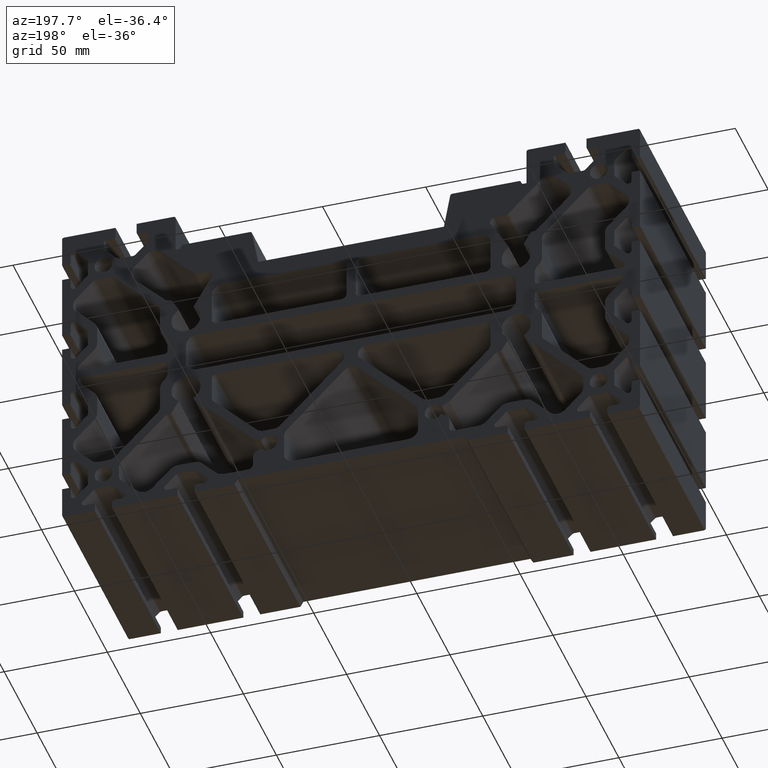
[diagram: clean part render]
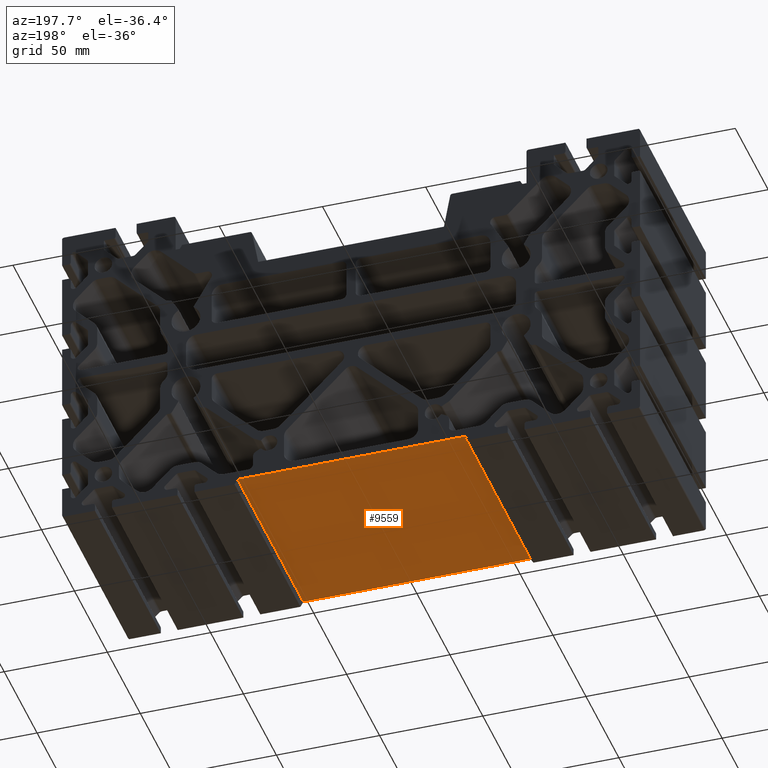
[diagram: same view with one face highlighted and labeled with its STEP entity id]
A machine part, auxiliary view. The second image highlights one B-rep face of the part: STEP entity #9559.
In plain terms, the highlighted planar face has unit normal (0, 0, -1).
Its self-contained STEP definition (entity closure, byte-faithful):
#300=PLANE('',#10502);
#774=FACE_OUTER_BOUND('',#1266,.T.);
#1266=EDGE_LOOP('',(#8388,#8389,#8390,#8391));
#1768=LINE('',#14734,#2738);
#1985=LINE('',#15404,#2955);
#2254=LINE('',#16147,#3224);
#2255=LINE('',#16149,#3225);
#2738=VECTOR('',#11906,10.);
#2955=VECTOR('',#12583,10.);
#3224=VECTOR('',#13310,10.);
#3225=VECTOR('',#13313,10.);
#4146=VERTEX_POINT('',#14731);
#4147=VERTEX_POINT('',#14733);
#4370=VERTEX_POINT('',#15403);
#4615=VERTEX_POINT('',#16145);
#5322=EDGE_CURVE('',#4146,#4147,#1768,.T.);
#5657=EDGE_CURVE('',#4370,#4146,#1985,.T.);
#6030=EDGE_CURVE('',#4370,#4615,#2254,.T.);
#6031=EDGE_CURVE('',#4615,#4147,#2255,.T.);
#8388=ORIENTED_EDGE('',*,*,#6030,.T.);
#8389=ORIENTED_EDGE('',*,*,#6031,.T.);
#8390=ORIENTED_EDGE('',*,*,#5322,.F.);
#8391=ORIENTED_EDGE('',*,*,#5657,.F.);
#9559=ADVANCED_FACE('',(#774),#300,.T.);
#10502=AXIS2_PLACEMENT_3D('',#16148,#13311,#13312);
#11906=DIRECTION('',(0.,1.,0.));
#12583=DIRECTION('',(1.,0.,1.61486985400023E-16));
#13310=DIRECTION('',(0.,1.,0.));
#13311=DIRECTION('center_axis',(1.61486985400023E-16,0.,-1.));
#13312=DIRECTION('ref_axis',(-1.,0.,-1.61486985400023E-16));
#13313=DIRECTION('',(1.,0.,-1.14835189620999E-15));
#14731=CARTESIAN_POINT('',(55.,-50.,-77.5000000106118));
#14733=CARTESIAN_POINT('',(55.,50.,-77.5000000106118));
#14734=CARTESIAN_POINT('',(55.,0.,-77.5000000106118));
#15403=CARTESIAN_POINT('',(-55.,-50.,-77.5000000106118));
#15404=CARTESIAN_POINT('',(-8.88178419700125E-15,-50.,-77.5000000106117));
#16145=CARTESIAN_POINT('',(-55.,50.,-77.5000000106118));
#16147=CARTESIAN_POINT('',(-55.,0.,-77.5000000106118));
#16148=CARTESIAN_POINT('Origin',(-8.88178419700125E-15,0.,-77.5000000106117));
#16149=CARTESIAN_POINT('',(-2.78152355180929E-26,50.,-77.5000000106117));